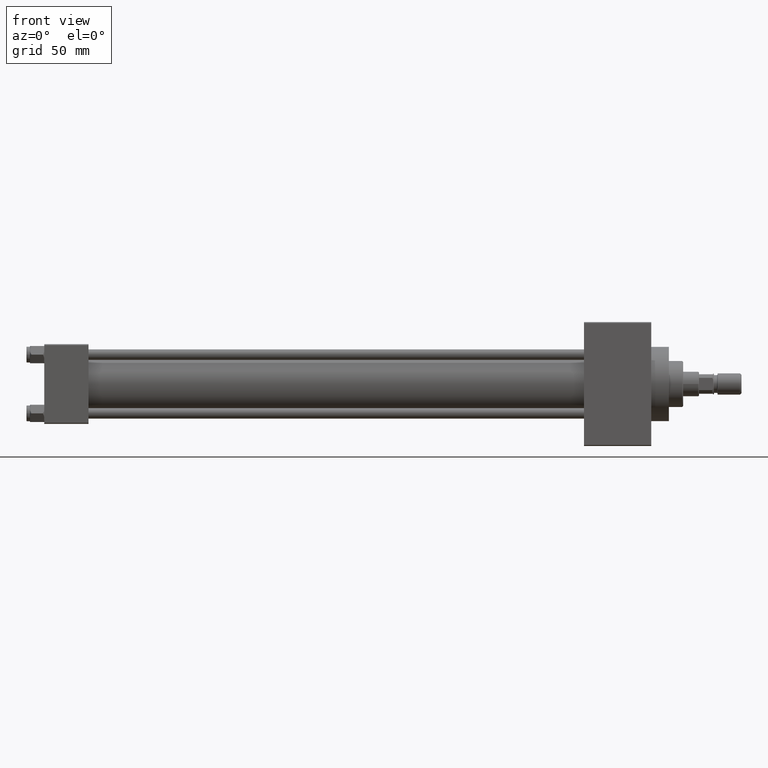
[diagram: clean part render]
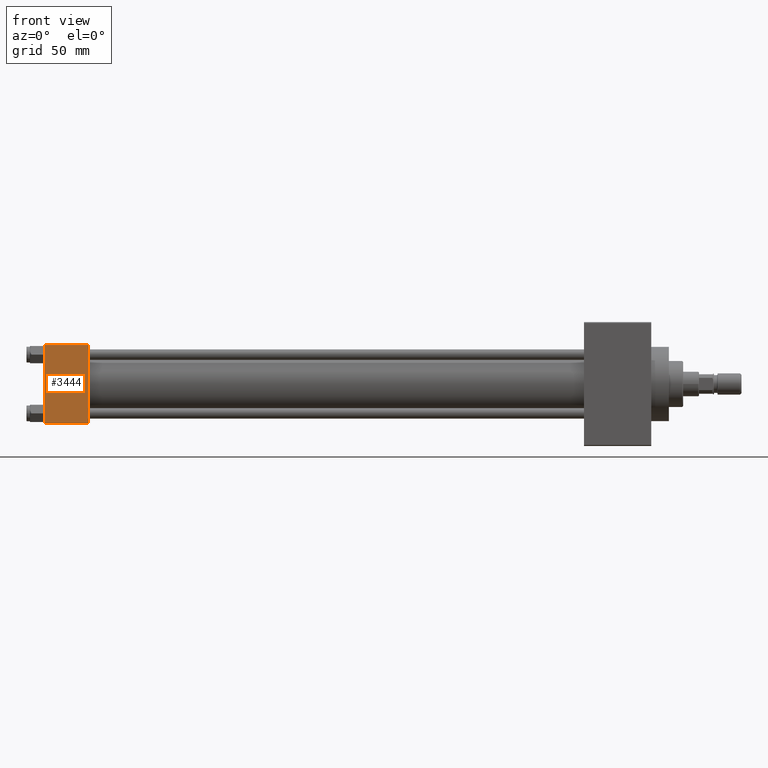
[diagram: same view with one face highlighted and labeled with its STEP entity id]
A machine part, front view. The second image highlights one B-rep face of the part: STEP entity #3444.
In plain terms, the highlighted planar face has unit normal (0, 1, 0).
Its self-contained STEP definition (entity closure, byte-faithful):
#2819 = CARTESIAN_POINT ( 'NONE',  ( 0.000000000000000000, -22.50000000000000000, 22.50000000000000000 ) ) ;
#3444 = ADVANCED_FACE ( 'NONE', ( #7996 ), #4477, .F. ) ;
#3701 = CARTESIAN_POINT ( 'NONE',  ( 0.000000000000000000, -22.50000000000000000, 22.00000000000000000 ) ) ;
#4477 = PLANE ( 'NONE',  #11643 ) ;
#7996 = FACE_OUTER_BOUND ( 'NONE', #33033, .T. ) ;
#8384 = DIRECTION ( 'NONE',  ( -1.000000000000000000, 0.000000000000000000, 0.000000000000000000 ) ) ;
#9831 = VERTEX_POINT ( 'NONE', #23305 ) ;
#10656 = LINE ( 'NONE', #37472, #32026 ) ;
#11643 = AXIS2_PLACEMENT_3D ( 'NONE', #19750, #43562, #20000 ) ;
#14090 = ORIENTED_EDGE ( 'NONE', *, *, #22652, .T. ) ;
#14938 = VERTEX_POINT ( 'NONE', #16993 ) ;
#16993 = CARTESIAN_POINT ( 'NONE',  ( 25.00000000000000000, -22.50000000000000000, -21.99999999999997158 ) ) ;
#17992 = VECTOR ( 'NONE', #36909, 1000.000000000000000 ) ;
#19615 = VERTEX_POINT ( 'NONE', #46697 ) ;
#19750 = CARTESIAN_POINT ( 'NONE',  ( 25.00000000000000000, -22.50000000000000000, 22.50000000000000000 ) ) ;
#20000 = DIRECTION ( 'NONE',  ( 0.000000000000000000, -0.000000000000000000, 1.000000000000000000 ) ) ;
#21525 = VECTOR ( 'NONE', #8384, 1000.000000000000000 ) ;
#21719 = EDGE_CURVE ( 'NONE', #9831, #14938, #33047, .T. ) ;
#22652 = EDGE_CURVE ( 'NONE', #19615, #38789, #24373, .T. ) ;
#23305 = CARTESIAN_POINT ( 'NONE',  ( 0.000000000000000000, -22.50000000000000000, -21.99999999999997158 ) ) ;
#24373 = LINE ( 'NONE', #31395, #21525 ) ;
#25284 = CARTESIAN_POINT ( 'NONE',  ( 25.00000000000000000, -22.50000000000000000, -21.99999999999998579 ) ) ;
#25907 = DIRECTION ( 'NONE',  ( 0.000000000000000000, 0.000000000000000000, -1.000000000000000000 ) ) ;
#25966 = ORIENTED_EDGE ( 'NONE', *, *, #36344, .T. ) ;
#26765 = ORIENTED_EDGE ( 'NONE', *, *, #21719, .T. ) ;
#31024 = EDGE_CURVE ( 'NONE', #19615, #14938, #10656, .T. ) ;
#31395 = CARTESIAN_POINT ( 'NONE',  ( 25.00000000000000000, -22.50000000000000000, 22.00000000000000000 ) ) ;
#32026 = VECTOR ( 'NONE', #25907, 1000.000000000000000 ) ;
#32127 = ORIENTED_EDGE ( 'NONE', *, *, #31024, .F. ) ;
#33033 = EDGE_LOOP ( 'NONE', ( #25966, #26765, #32127, #14090 ) ) ;
#33047 = LINE ( 'NONE', #25284, #35086 ) ;
#33806 = DIRECTION ( 'NONE',  ( 1.000000000000000000, 0.000000000000000000, 0.000000000000000000 ) ) ;
#35086 = VECTOR ( 'NONE', #33806, 1000.000000000000000 ) ;
#36344 = EDGE_CURVE ( 'NONE', #38789, #9831, #40655, .T. ) ;
#36909 = DIRECTION ( 'NONE',  ( 0.000000000000000000, 0.000000000000000000, -1.000000000000000000 ) ) ;
#37472 = CARTESIAN_POINT ( 'NONE',  ( 25.00000000000000000, -22.50000000000000000, 22.50000000000000000 ) ) ;
#38789 = VERTEX_POINT ( 'NONE', #3701 ) ;
#40655 = LINE ( 'NONE', #2819, #17992 ) ;
#43562 = DIRECTION ( 'NONE',  ( -0.000000000000000000, 1.000000000000000000, 0.000000000000000000 ) ) ;
#46697 = CARTESIAN_POINT ( 'NONE',  ( 25.00000000000000000, -22.50000000000000000, 22.00000000000000000 ) ) ;